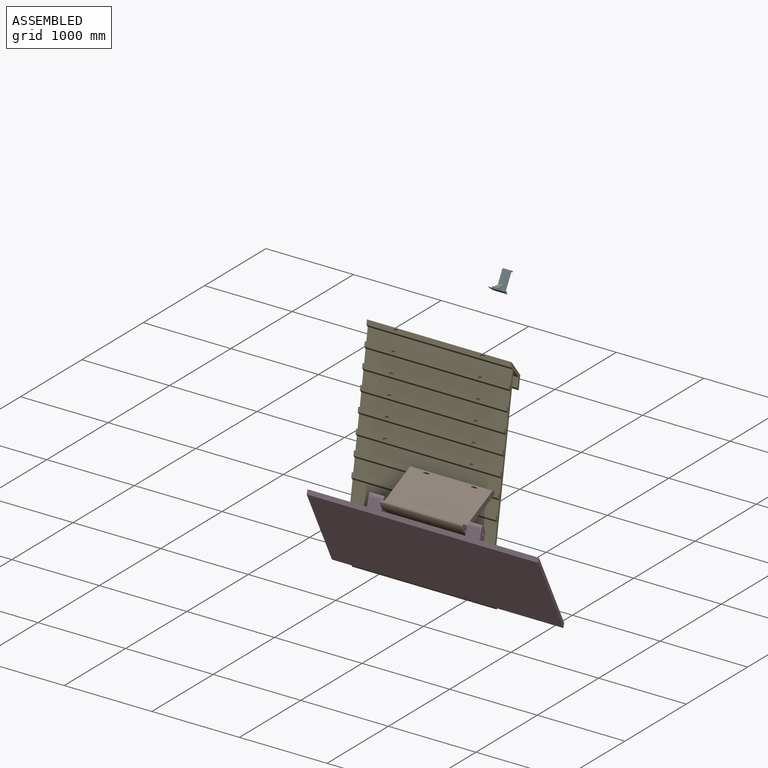
[diagram: assembled view]
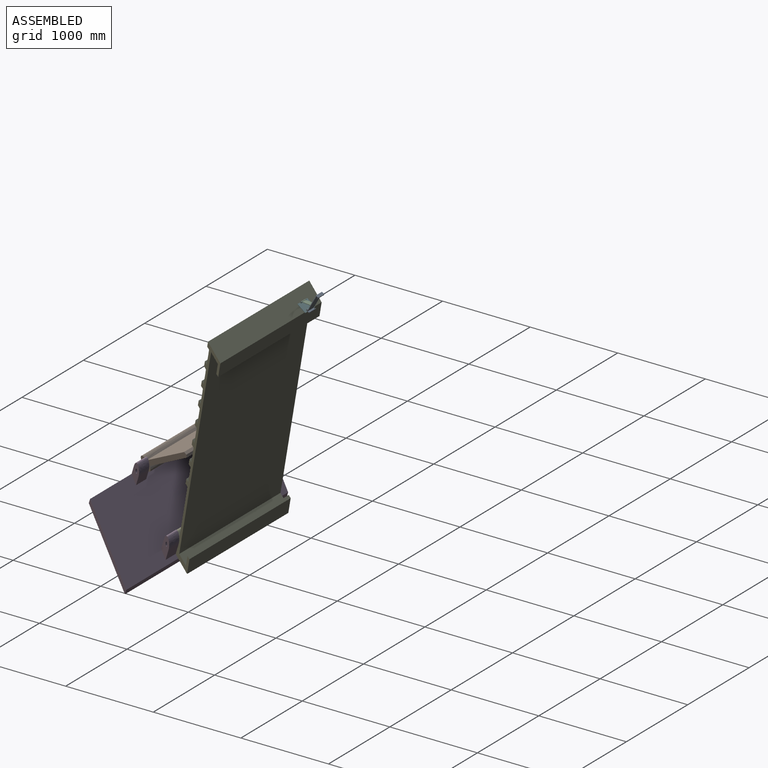
[diagram: assembled view, second angle]
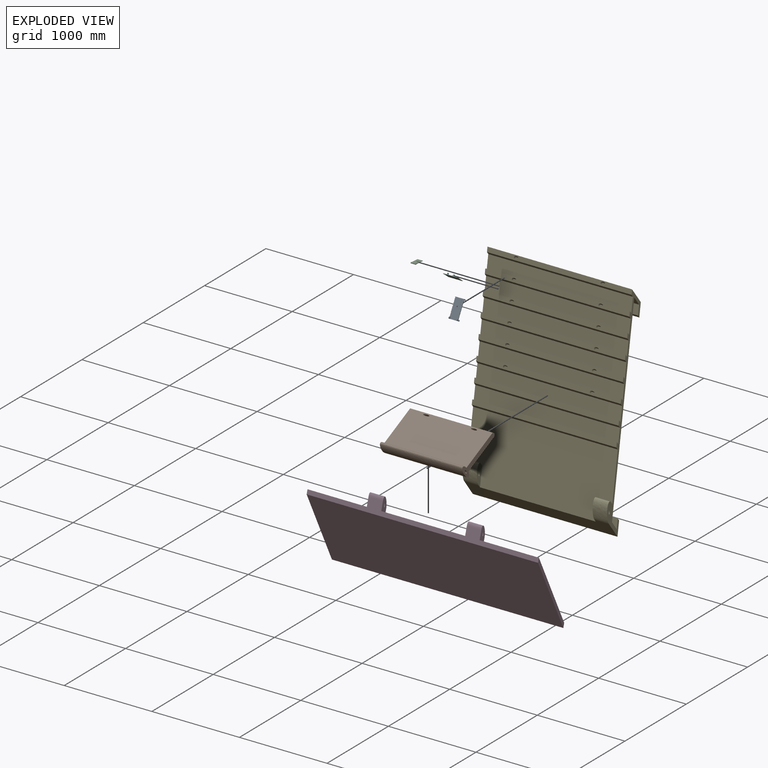
[diagram: exploded view]
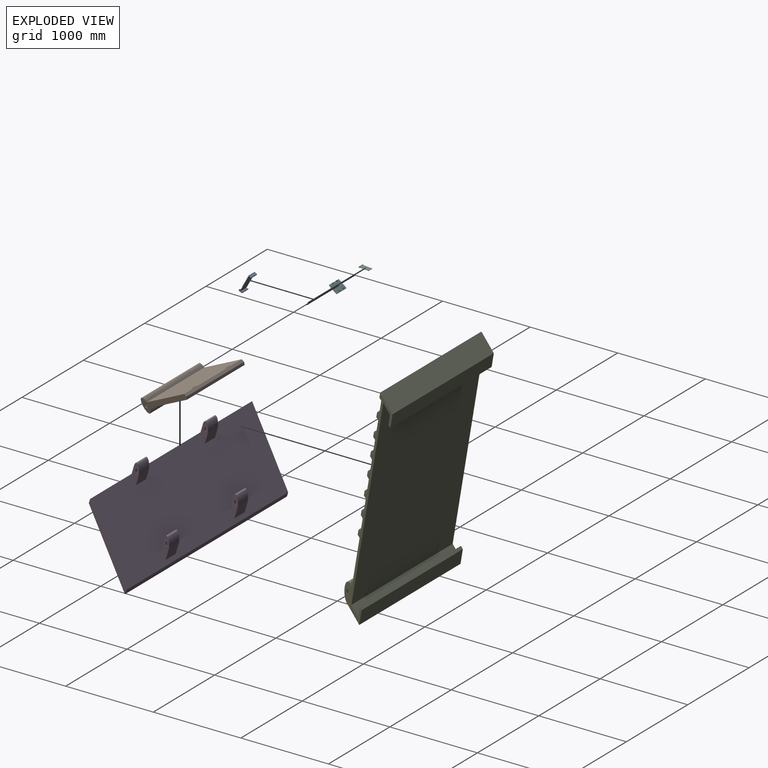
[diagram: exploded view, second angle]
ASSEMBLY  parts=6 mates=4
PART A: 76 faces, bbox 100x136.1x204 mm
  f0: plane 100x12.99mm, normal (0,-0.87,-0.5), area 1500mm2, adj f9,f11,f36,f69
  f1: plane 100x12.99mm, normal (0,-0.87,-0.5), area 1500mm2, adj f9,f11,f43,f62
  f2: plane 100x12.99mm, normal (0,-0.87,-0.5), area 1500mm2, adj f9,f11,f50,f55
  f3: plane 100x60.62mm, normal (0,-0.87,-0.5), area 6600mm2, adj f9,f11,f12,f21,f22,f23,f24,f52
  f4: plane 100x12.99mm, normal (0,-0.87,-0.5), area 1500mm2, adj f9,f11,f49,f53
  f5: plane 100x12.99mm, normal (0,-0.87,-0.5), area 1500mm2, adj f9,f11,f42,f56
  f6: plane 100x12.99mm, normal (0,-0.87,-0.5), area 1500mm2, adj f9,f11,f35,f63
  f7: plane 100x12.99mm, normal (0,-0.87,-0.5), area 1500mm2, adj f9,f11,f29,f70
  f8: plane 178.4x103mm, normal (0,0.87,0.5), area 20600mm2, adj f9,f11,f13,f17
  f9: plane 204.04x136.08mm, normal (-1,0,0), area 1825.2mm2, adj f0,f1,f2,f3,f4,f5,f6,f7
  f10: plane 100x28.58mm, normal (0,-0.5,0.87), area 3300mm2, adj f9,f11,f18,f30
  f11: plane 204.04x136.08mm, normal (1,0,0), area 1825.2mm2, adj f0,f1,f2,f3,f4,f5,f6,f7
  f12: plane 100x28.58mm, normal (0,0.5,-0.87), area 2900mm2, adj f3,f9,f11,f14,f22,f24,f25,f26
  f13: plane 100x15.59mm, normal (0,-0.5,0.87), area 1800mm2, adj f8,f9,f11,f15
  f14: plane 100x12.99mm, normal (0,0.87,0.5), area 1500mm2, adj f9,f11,f12,f16
  f15: plane 100x8.66mm, normal (0,-0.87,-0.5), area 1000mm2, adj f9,f11,f13,f16
  f16: plane 100x4.33mm, normal (0,-0.5,0.87), area 500mm2, adj f9,f11,f14,f15
  f17: plane 100x15.59mm, normal (0,0.5,-0.87), area 1800mm2, adj f8,f9,f11,f19
  f18: plane 100x12.12mm, normal (0,0.87,0.5), area 1400mm2, adj f9,f10,f11,f20
  f19: plane 100x8.66mm, normal (0,-0.87,-0.5), area 1000mm2, adj f9,f11,f17,f20
  f20: plane 100x4.33mm, normal (0,0.5,-0.87), area 500mm2, adj f9,f11,f18,f19
  f21: plane 10x4.33mm, normal (0,-0.5,0.87), area 50mm2, adj f3,f9,f22,f25
  f22: plane 21.16x19.33mm, normal (1,0,0), area 243.2mm2, adj f3,f12,f21,f25,f28
  f23: plane 10x4.33mm, normal (0,-0.5,0.87), area 50mm2, adj f3,f11,f24,f26
  f24: plane 21.16x19.33mm, normal (-1,0,0), area 243.2mm2, adj f3,f12,f23,f26,f27
  f25: cylinder r=10mm len=18.66mm, axis (1,0,0), area 314.2mm2, adj f9,f12,f21,f22
  f26: cylinder r=10mm len=18.66mm, axis (-1,0,0), area 314.2mm2, adj f11,f12,f23,f24
  f27: cylinder r=2.1mm len=10mm, axis (1,0,0), area 131.9mm2, adj f11,f24
  f28: cylinder r=2.1mm len=10mm, axis (1,0,0), area 131.9mm2, adj f9,f22
  f29: plane 100x4.33mm, normal (0,0.5,-0.87), area 500mm2, adj f7,f9,f11,f30
  f30: plane 100x4.33mm, normal (0,-0.87,-0.5), area 483.9mm2, adj f9,f10,f11,f29,f31,f33
  f31: cylinder r=1.6mm len=4.27mm, axis (0,-0.87,-0.5), area 30.2mm2, adj f30,f32
  f32: plane 3.2x2.77mm, normal (0,-0.87,-0.5), area 8mm2, adj f31
  f33: cylinder r=1.6mm len=4.27mm, axis (0,-0.87,-0.5), area 30.2mm2, adj f30,f34
  f34: plane 3.2x2.77mm, normal (0,-0.87,-0.5), area 8mm2, adj f33
  f35: plane 100x4.33mm, normal (0,0.5,-0.87), area 500mm2, adj f6,f9,f11,f37
  f36: plane 100x4.33mm, normal (0,-0.5,0.87), area 500mm2, adj f0,f9,f11,f37
  f37: plane 100x4.33mm, normal (0,-0.87,-0.5), area 483.9mm2, adj f9,f11,f35,f36,f38,f40
  f38: cylinder r=1.6mm len=4.27mm, axis (0,-0.87,-0.5), area 30.2mm2, adj f37,f39
  f39: plane 3.2x2.77mm, normal (0,-0.87,-0.5), area 8mm2, adj f38
  f40: cylinder r=1.6mm len=4.27mm, axis (0,-0.87,-0.5), area 30.2mm2, adj f37,f41
  f41: plane 3.2x2.77mm, normal (0,-0.87,-0.5), area 8mm2, adj f40
  f42: plane 100x4.33mm, normal (0,0.5,-0.87), area 500mm2, adj f5,f9,f11,f44
  f43: plane 100x4.33mm, normal (0,-0.5,0.87), area 500mm2, adj f1,f9,f11,f44
  f44: plane 100x4.33mm, normal (0,-0.87,-0.5), area 483.9mm2, adj f9,f11,f42,f43,f45,f47
  f45: cylinder r=1.6mm len=4.27mm, axis (0,-0.87,-0.5), area 30.2mm2, adj f44,f46
  f46: plane 3.2x2.77mm, normal (0,-0.87,-0.5), area 8mm2, adj f45
  f47: cylinder r=1.6mm len=4.27mm, axis (0,-0.87,-0.5), area 30.2mm2, adj f44,f48
  f48: plane 3.2x2.77mm, normal (0,-0.87,-0.5), area 8mm2, adj f47
  f49: plane 100x4.33mm, normal (0,0.5,-0.87), area 500mm2, adj f4,f9,f11,f51
  f50: plane 100x4.33mm, normal (0,-0.5,0.87), area 500mm2, adj f2,f9,f11,f51
  f51: plane 100x4.33mm, normal (0,-0.87,-0.5), area 500mm2, adj f9,f11,f49,f50
  f52: plane 100x4.33mm, normal (0,0.5,-0.87), area 500mm2, adj f3,f9,f11,f54
  f53: plane 100x4.33mm, normal (0,-0.5,0.87), area 500mm2, adj f4,f9,f11,f54
  f54: plane 100x4.33mm, normal (0,-0.87,-0.5), area 500mm2, adj f9,f11,f52,f53
  f55: plane 100x4.33mm, normal (0,0.5,-0.87), area 500mm2, adj f2,f9,f11,f57
  f56: plane 100x4.33mm, normal (0,-0.5,0.87), area 500mm2, adj f5,f9,f11,f57
  f57: plane 100x4.33mm, normal (0,-0.87,-0.5), area 483.9mm2, adj f9,f11,f55,f56,f58,f60
  f58: cylinder r=1.6mm len=4.27mm, axis (0,-0.87,-0.5), area 30.2mm2, adj f57,f59
  f59: plane 3.2x2.77mm, normal (0,-0.87,-0.5), area 8mm2, adj f58
  f60: cylinder r=1.6mm len=4.27mm, axis (0,-0.87,-0.5), area 30.2mm2, adj f57,f61
  f61: plane 3.2x2.77mm, normal (0,-0.87,-0.5), area 8mm2, adj f60
  f62: plane 100x4.33mm, normal (0,0.5,-0.87), area 500mm2, adj f1,f9,f11,f64
  f63: plane 100x4.33mm, normal (0,-0.5,0.87), area 500mm2, adj f6,f9,f11,f64
  f64: plane 100x4.33mm, normal (0,-0.87,-0.5), area 483.9mm2, adj f9,f11,f62,f63,f65,f67
  f65: cylinder r=1.6mm len=4.27mm, axis (0,-0.87,-0.5), area 30.2mm2, adj f64,f66
  f66: plane 3.2x2.77mm, normal (0,-0.87,-0.5), area 8mm2, adj f65
  f67: cylinder r=1.6mm len=4.27mm, axis (0,-0.87,-0.5), area 30.2mm2, adj f64,f68
  f68: plane 3.2x2.77mm, normal (0,-0.87,-0.5), area 8mm2, adj f67
  f69: plane 100x4.33mm, normal (0,0.5,-0.87), area 500mm2, adj f0,f9,f11,f71
  f70: plane 100x4.33mm, normal (0,-0.5,0.87), area 500mm2, adj f7,f9,f11,f71
  f71: plane 100x4.33mm, normal (0,-0.87,-0.5), area 483.9mm2, adj f9,f11,f69,f70,f72,f74
  f72: cylinder r=1.6mm len=4.27mm, axis (0,-0.87,-0.5), area 30.2mm2, adj f71,f73
  f73: plane 3.2x2.77mm, normal (0,-0.87,-0.5), area 8mm2, adj f72
  f74: cylinder r=1.6mm len=4.27mm, axis (0,-0.87,-0.5), area 30.2mm2, adj f71,f75
  f75: plane 3.2x2.77mm, normal (0,-0.87,-0.5), area 8mm2, adj f74
PART B: 10 faces, bbox 941.1x538.7x227.2 mm
  f0: extruded ~941.07x167.99mm, area 304709.4mm2, adj f1,f2,f3,f4
  f1: plane 538.72x227.22mm, normal (-1,0,0), area 36228.5mm2, adj f0,f3,f4,f5,f6,f7
  f2: plane 538.72x227.22mm, normal (1,0,0), area 36228.5mm2, adj f0,f3,f4,f5,f6,f7
  f3: plane 941.07x461.56mm, normal (0,-0.19,-0.98), area 440774.9mm2, adj f0,f1,f2,f6,f8,f9
  f4: plane 941.07x461.56mm, normal (0,0.19,0.98), area 440774.9mm2, adj f0,f1,f2,f7,f8,f9
  f5: extruded ~941.07x50.26mm, area 108606.7mm2, adj f1,f2
  f6: plane 941.07x27.68mm, normal (0,0.91,-0.41), area 28519.2mm2, adj f1,f2,f3,f7
  f7: plane 941.07x32.16mm, normal (0,0.95,0.31), area 31870.8mm2, adj f1,f2,f4,f6
  f8: extruded ~69.34x63.6mm, area 9056.4mm2, adj f3,f4
  f9: extruded ~69.34x63.6mm, area 9056.4mm2, adj f3,f4
PART C: 10 faces, bbox 57x116.5x14 mm
  f0: cylinder r=7mm len=57mm, axis (1,0,0), area 2215.6mm2, adj f1,f2,f3,f4
  f1: plane 116.5x14mm, normal (-1,0,0), area 647.1mm2, adj f0,f3,f4,f5,f6,f7
  f2: plane 116.5x14mm, normal (1,0,0), area 647.1mm2, adj f0,f3,f4,f5,f6,f7
  f3: plane 100.46x57mm, normal (0,0,1), area 5698.6mm2, adj f0,f1,f2,f6,f8,f9
  f4: plane 100.46x57mm, normal (0,0,-1), area 5698.6mm2, adj f0,f1,f2,f7,f8,f9
  f5: cylinder r=2.1mm len=57mm, axis (1,0,0), area 752.1mm2, adj f1,f2
  f6: plane 57x2.5mm, normal (0,-0.71,0.71), area 201.5mm2, adj f1,f2,f3,f7
  f7: plane 57x2.5mm, normal (0,-0.71,-0.71), area 201.5mm2, adj f1,f2,f4,f6
  f8: cylinder r=2.1mm len=5mm, axis (0,0,1), area 66mm2, adj f3,f4
  f9: cylinder r=2.1mm len=5mm, axis (0,0,1), area 66mm2, adj f3,f4
PART D: 29 faces, bbox 2683.7x505.2x1068.2 mm
  f0: plane 2641.61x829.43mm, normal (0,0.9,0.44), area 2370556.7mm2, adj f2,f4,f5,f6,f7,f10,f11,f12
  f1: plane 2641.61x829.43mm, normal (0,-0.9,-0.44), area 2446324.4mm2, adj f2,f15,f25,f26
  f2: plane 2641.61x47.47mm, normal (0,0.96,-0.28), area 130798.6mm2, adj f0,f1,f25,f26
  f3: extruded ~165.1x137.74mm, area 32098.8mm2, adj f4,f5,f6,f8
  f4: plane 295.55x138.3mm, normal (1,0,0), area 12777.6mm2, adj f0,f3,f6,f7,f8,f28
  f5: plane 295.55x138.3mm, normal (-1,0,0), area 12777.6mm2, adj f0,f3,f6,f7,f8,f28
  f6: plane 165.1x111.49mm, normal (0,0.96,-0.28), area 19201.2mm2, adj f0,f3,f4,f5
  f7: plane 165.1x113.92mm, normal (0,-0.96,0.28), area 19619.8mm2, adj f0,f4,f5,f8
  f8: plane 165.1x0.03mm, normal (0,0.9,0.44), area 6.3mm2, adj f3,f4,f5,f7
  f9: extruded ~165.1x135.36mm, area 31686.9mm2, adj f10,f11,f12,f13
  f10: plane 306.45x147.63mm, normal (-1,0,0), area 12778.4mm2, adj f0,f9,f12,f13,f27
  f11: plane 306.45x147.63mm, normal (1,0,0), area 12778.2mm2, adj f0,f9,f12,f13,f27
  f12: plane 165.1x113.92mm, normal (0,-0.96,0.28), area 19619.8mm2, adj f0,f9,f10,f11
  f13: plane 165.1x113.92mm, normal (0,0.96,-0.28), area 19619.8mm2, adj f0,f9,f10,f11
  f14: plane 165.1x95.83mm, normal (0,0.96,-0.28), area 16503.5mm2, adj f0,f16,f17,f18
  f15: plane 2641.61x143.3mm, normal (0,-0.96,0.28), area 163805.6mm2, adj f0,f1,f16,f17,f18,f19,f21,f22
  f16: extruded ~165.1x135.36mm, area 31686.9mm2, adj f14,f15,f17,f18
  f17: plane 288.36x142.26mm, normal (1,0,0), area 11303.1mm2, adj f0,f14,f15,f16,f24
  f18: plane 288.36x142.26mm, normal (-1,0,0), area 11303.1mm2, adj f0,f14,f15,f16,f24
  f19: extruded ~165.1x135.36mm, area 31686.9mm2, adj f15,f20,f21,f22
  f20: plane 165.1x95.83mm, normal (0,0.96,-0.28), area 16503.5mm2, adj f0,f19,f21,f22
  f21: plane 288.36x142.26mm, normal (-1,0,0), area 11303.1mm2, adj f0,f15,f19,f20,f23
  f22: plane 288.36x142.26mm, normal (1,0,0), area 11303.1mm2, adj f0,f15,f19,f20,f23
  f23: extruded ~165.1x50.29mm, area 19041mm2, adj f21,f22
  f24: extruded ~165.1x50.29mm, area 19041mm2, adj f17,f18
  f25: plane 876.9x425.98mm, normal (1,0,0), area 31238.3mm2, adj f0,f1,f2,f15
  f26: plane 876.9x425.98mm, normal (-1,0,0), area 31238.3mm2, adj f0,f1,f2,f15
  f27: extruded ~165.1x50.29mm, area 19041mm2, adj f10,f11
  f28: extruded ~165.1x50.29mm, area 19041mm2, adj f4,f5
PART E: 76 faces, bbox 1722.6x730.2x2519 mm
  f0: plane 1651x157.33mm, normal (0,-0.98,0.21), area 265600.7mm2, adj f9,f11,f36,f69
  f1: plane 1651x157.33mm, normal (0,-0.98,0.21), area 265600.7mm2, adj f9,f11,f43,f62
  f2: plane 1651x157.33mm, normal (0,-0.98,0.21), area 265600.7mm2, adj f9,f11,f50,f55
  f3: plane 1651x734.21mm, normal (0,-0.98,0.21), area 1168642.9mm2, adj f9,f11,f12,f21,f22,f23,f24,f52
  f4: plane 1651x157.33mm, normal (0,-0.98,0.21), area 265600.7mm2, adj f9,f11,f49,f53
  f5: plane 1651x157.33mm, normal (0,-0.98,0.21), area 265600.7mm2, adj f9,f11,f42,f56
  f6: plane 1651x157.33mm, normal (0,-0.98,0.21), area 265600.7mm2, adj f9,f11,f35,f63
  f7: plane 1651x157.33mm, normal (0,-0.98,0.21), area 265600.7mm2, adj f9,f11,f29,f70
  f8: plane 2160.66x1651mm, normal (0,0.98,-0.21), area 3647582.3mm2, adj f9,f11,f13,f17
  f9: plane 2519.04x730.24mm, normal (-1,0,0), area 101309.1mm2, adj f0,f1,f2,f3,f4,f5,f6,f7
  f10: plane 1651x192.39mm, normal (0,0.82,0.57), area 386041.3mm2, adj f9,f11,f18,f30
  f11: plane 2519.04x730.24mm, normal (1,0,0), area 101309.1mm2, adj f0,f1,f2,f3,f4,f5,f6,f7
  f12: plane 1651x192.39mm, normal (0,-0.82,-0.57), area 339248.4mm2, adj f3,f9,f11,f14,f22,f24,f25,f26
  f13: plane 1651x104.94mm, normal (0,0.82,0.57), area 210568mm2, adj f8,f9,f11,f15
  f14: plane 1651x157.33mm, normal (0,0.98,-0.21), area 265600.7mm2, adj f9,f11,f12,f16
  f15: plane 1651x104.89mm, normal (0,-0.98,0.21), area 177067.1mm2, adj f9,f11,f13,f16
  f16: plane 1651x29.15mm, normal (0,0.82,0.57), area 58491.1mm2, adj f9,f11,f14,f15
  f17: plane 1651x104.94mm, normal (0,-0.82,-0.57), area 210568mm2, adj f8,f9,f11,f19
  f18: plane 1651x146.84mm, normal (0,0.98,-0.21), area 247893.9mm2, adj f9,f10,f11,f20
  f19: plane 1651x104.89mm, normal (0,-0.98,0.21), area 177067.1mm2, adj f9,f11,f17,f20
  f20: plane 1651x29.15mm, normal (0,-0.82,-0.57), area 58491.1mm2, adj f9,f11,f18,f19
  f21: plane 165.1x29.15mm, normal (0,0.82,0.57), area 5849.1mm2, adj f3,f9,f22,f25
  f22: plane 346.13x181.01mm, normal (1,0,0), area 13449.3mm2, adj f3,f12,f21,f25,f28
  f23: plane 165.1x29.15mm, normal (0,0.82,0.57), area 5849.1mm2, adj f3,f11,f24,f26
  f24: plane 346.13x181.01mm, normal (-1,0,0), area 13449.3mm2, adj f3,f12,f23,f26,f27
  f25: extruded ~224.85x165.1mm, area 45229.2mm2, adj f9,f12,f21,f22
  f26: extruded ~224.85x165.1mm, area 45229.2mm2, adj f11,f12,f23,f24
  f27: extruded ~165.1x50.38mm, area 19012.4mm2, adj f11,f24
  f28: extruded ~165.1x50.38mm, area 19012.4mm2, adj f9,f22
  f29: plane 1651x29.15mm, normal (0,-0.82,-0.57), area 58491.1mm2, adj f7,f9,f11,f30
  f30: plane 1651x52.44mm, normal (0,-0.98,0.21), area 85685.9mm2, adj f9,f10,f11,f29,f31,f33
  f31: extruded ~52.83x51.05mm, area 2688mm2, adj f30,f32
  f32: plane 68.68x33.56mm, normal (0,-0.98,0.21), area 1423.8mm2, adj f31
  f33: extruded ~52.83x51.05mm, area 2688mm2, adj f30,f34
  f34: plane 68.68x33.56mm, normal (0,-0.98,0.21), area 1423.8mm2, adj f33
  f35: plane 1651x29.15mm, normal (0,-0.82,-0.57), area 58491.1mm2, adj f6,f9,f11,f37
  f36: plane 1651x29.15mm, normal (0,0.82,0.57), area 58491.1mm2, adj f0,f9,f11,f37
  f37: plane 1651x52.44mm, normal (0,-0.98,0.21), area 85685.9mm2, adj f9,f11,f35,f36,f38,f40
  f38: extruded ~52.83x51.05mm, area 2688mm2, adj f37,f39
  f39: plane 68.68x33.56mm, normal (0,-0.98,0.21), area 1423.8mm2, adj f38
  f40: extruded ~52.83x51.05mm, area 2688mm2, adj f37,f41
  f41: plane 68.68x33.56mm, normal (0,-0.98,0.21), area 1423.8mm2, adj f40
  f42: plane 1651x29.15mm, normal (0,-0.82,-0.57), area 58491.1mm2, adj f5,f9,f11,f44
  f43: plane 1651x29.15mm, normal (0,0.82,0.57), area 58491.1mm2, adj f1,f9,f11,f44
  f44: plane 1651x52.44mm, normal (0,-0.98,0.21), area 85685.9mm2, adj f9,f11,f42,f43,f45,f47
  f45: extruded ~52.83x51.05mm, area 2688mm2, adj f44,f46
  f46: plane 68.68x33.56mm, normal (0,-0.98,0.21), area 1423.8mm2, adj f45
  f47: extruded ~52.83x51.05mm, area 2688mm2, adj f44,f48
  f48: plane 68.68x33.56mm, normal (0,-0.98,0.21), area 1423.8mm2, adj f47
  f49: plane 1651x29.15mm, normal (0,-0.82,-0.57), area 58491.1mm2, adj f4,f9,f11,f51
  f50: plane 1651x29.15mm, normal (0,0.82,0.57), area 58491.1mm2, adj f2,f9,f11,f51
  f51: plane 1651x52.44mm, normal (0,-0.98,0.21), area 88533.6mm2, adj f9,f11,f49,f50
  f52: plane 1651x29.15mm, normal (0,-0.82,-0.57), area 58491.1mm2, adj f3,f9,f11,f54
  f53: plane 1651x29.15mm, normal (0,0.82,0.57), area 58491.1mm2, adj f4,f9,f11,f54
  f54: plane 1651x52.44mm, normal (0,-0.98,0.21), area 88533.6mm2, adj f9,f11,f52,f53
  f55: plane 1651x29.15mm, normal (0,-0.82,-0.57), area 58491.1mm2, adj f2,f9,f11,f57
  f56: plane 1651x29.15mm, normal (0,0.82,0.57), area 58491.1mm2, adj f5,f9,f11,f57
  f57: plane 1651x52.44mm, normal (0,-0.98,0.21), area 85685.9mm2, adj f9,f11,f55,f56,f58,f60
  f58: extruded ~52.83x51.05mm, area 2688mm2, adj f57,f59
  f59: plane 68.68x33.56mm, normal (0,-0.98,0.21), area 1423.8mm2, adj f58
  f60: extruded ~52.83x51.05mm, area 2688mm2, adj f57,f61
  f61: plane 68.68x33.56mm, normal (0,-0.98,0.21), area 1423.8mm2, adj f60
  f62: plane 1651x29.15mm, normal (0,-0.82,-0.57), area 58491.1mm2, adj f1,f9,f11,f64
  f63: plane 1651x29.15mm, normal (0,0.82,0.57), area 58491.1mm2, adj f6,f9,f11,f64
  f64: plane 1651x52.44mm, normal (0,-0.98,0.21), area 85685.9mm2, adj f9,f11,f62,f63,f65,f67
  f65: extruded ~52.83x51.05mm, area 2688mm2, adj f64,f66
  f66: plane 68.68x33.56mm, normal (0,-0.98,0.21), area 1423.8mm2, adj f65
  f67: extruded ~52.83x51.05mm, area 2688mm2, adj f64,f68
  f68: plane 68.68x33.56mm, normal (0,-0.98,0.21), area 1423.8mm2, adj f67
  f69: plane 1651x29.15mm, normal (0,-0.82,-0.57), area 58491.1mm2, adj f0,f9,f11,f71
  f70: plane 1651x29.15mm, normal (0,0.82,0.57), area 58491.1mm2, adj f7,f9,f11,f71
  f71: plane 1651x52.44mm, normal (0,-0.98,0.21), area 85685.9mm2, adj f9,f11,f69,f70,f72,f74
  f72: extruded ~52.83x51.05mm, area 2688mm2, adj f71,f73
  f73: plane 68.68x33.56mm, normal (0,-0.98,0.21), area 1423.8mm2, adj f72
  f74: extruded ~52.83x51.05mm, area 2688mm2, adj f71,f75
  f75: plane 68.68x33.56mm, normal (0,-0.98,0.21), area 1423.8mm2, adj f74
PART F: 29 faces, bbox 160x113x24 mm
  f0: plane 160x113.01mm, normal (0,0,1), area 17520.8mm2, adj f2,f4,f5,f6,f7,f10,f11,f12
  f1: plane 160x113.01mm, normal (0,0,-1), area 18080.8mm2, adj f2,f15,f25,f26
  f2: plane 160x5mm, normal (0,1,0), area 800mm2, adj f0,f1,f25,f26
  f3: cylinder r=7mm len=14mm, axis (-1,0,0), area 222.5mm2, adj f4,f5,f6,f8
  f4: plane 19x14mm, normal (1,0,0), area 231.1mm2, adj f0,f3,f6,f7,f8,f28
  f5: plane 19x14mm, normal (-1,0,0), area 231.1mm2, adj f0,f3,f6,f7,f8,f28
  f6: plane 11.74x10mm, normal (0,1,0), area 117.4mm2, adj f0,f3,f4,f5
  f7: plane 12x10mm, normal (0,-1,0), area 120mm2, adj f0,f4,f5,f8
  f8: plane 10x0mm, normal (0,0,1), area 0mm2, adj f3,f4,f5,f7
  f9: cylinder r=7mm len=14mm, axis (1,0,0), area 219.9mm2, adj f10,f11,f12,f13
  f10: plane 19x14mm, normal (-1,0,0), area 231.1mm2, adj f0,f9,f12,f13,f27
  f11: plane 19x14mm, normal (1,0,0), area 231.1mm2, adj f0,f9,f12,f13,f27
  f12: plane 12x10mm, normal (0,-1,0), area 120mm2, adj f0,f9,f10,f11
  f13: plane 12x10mm, normal (0,1,0), area 120mm2, adj f0,f9,f10,f11
  f14: plane 10.09x10mm, normal (0,1,0), area 100.9mm2, adj f0,f16,f17,f18
  f15: plane 160x15.09mm, normal (0,-1,0), area 1001.9mm2, adj f0,f1,f16,f17,f18,f19,f21,f22
  f16: cylinder r=7mm len=14mm, axis (-1,0,0), area 219.9mm2, adj f14,f15,f17,f18
  f17: plane 17.09x14mm, normal (1,0,0), area 204.4mm2, adj f0,f14,f15,f16,f24
  f18: plane 17.09x14mm, normal (-1,0,0), area 204.4mm2, adj f0,f14,f15,f16,f24
  f19: cylinder r=7mm len=14mm, axis (1,0,0), area 219.9mm2, adj f15,f20,f21,f22
  f20: plane 10.09x10mm, normal (0,1,0), area 100.9mm2, adj f0,f19,f21,f22
  f21: plane 17.09x14mm, normal (-1,0,0), area 204.4mm2, adj f0,f15,f19,f20,f23
  f22: plane 17.09x14mm, normal (1,0,0), area 204.4mm2, adj f0,f15,f19,f20,f23
  f23: cylinder r=2.1mm len=10mm, axis (1,0,0), area 131.9mm2, adj f21,f22
  f24: cylinder r=2.1mm len=10mm, axis (1,0,0), area 131.9mm2, adj f17,f18
  f25: plane 113.01x5mm, normal (1,0,0), area 565mm2, adj f0,f1,f2,f15
  f26: plane 113.01x5mm, normal (-1,0,0), area 565mm2, adj f0,f1,f2,f15
  f27: cylinder r=2.1mm len=10mm, axis (1,0,0), area 131.9mm2, adj f10,f11
  f28: cylinder r=2.1mm len=10mm, axis (1,0,0), area 131.9mm2, adj f4,f5
PLACE A rot(axis=(-1,0,0),59.1deg) t=(802.28,625.77,525.17)mm
PLACE B rot(axis=(1,0,0),36.1deg) t=(-16.51,-939.39,273.31)mm
PLACE C rot(axis=(1,0,0),175.7deg) t=(825.29,489.39,544.54)mm
PLACE D at identity fixed
PLACE E rot(axis=(1,0,0),2.6deg) t=(-363.22,-100.74,-11.28)mm
PLACE F rot(axis=(-1,0,0),37.7deg) t=(801.28,614.58,564.65)mm
MATE revolute A.f27 <-> F.f9  axis (1,0,0) through (757.29,546.22,480.65)mm
MATE revolute D.f17 <-> B.f1  axis (1,0,0) through (471.2,-883.98,-1295.15)mm
MATE revolute F.f19 <-> C.f0  axis (-1,0,0) through (825.29,471.73,535.83)mm
MATE revolute D.f10 <-> E.f11  axis (-1,0,0) through (1428.78,-540.8,-1957.31)mm
